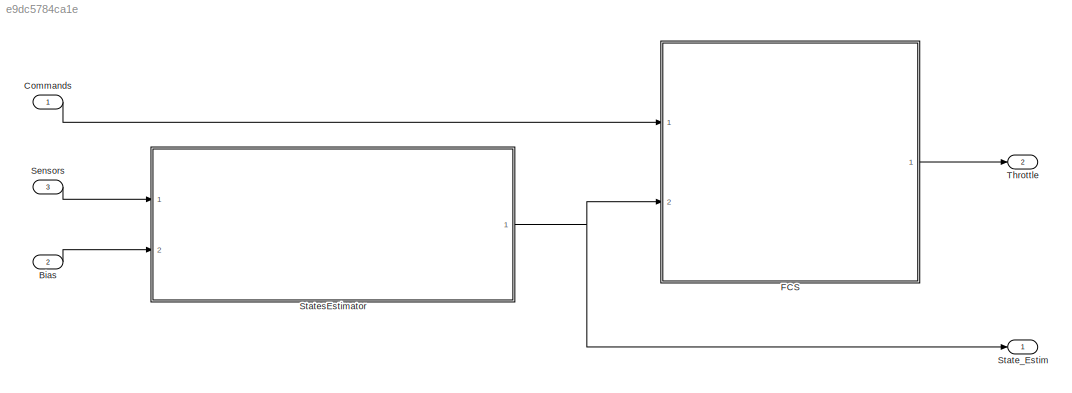
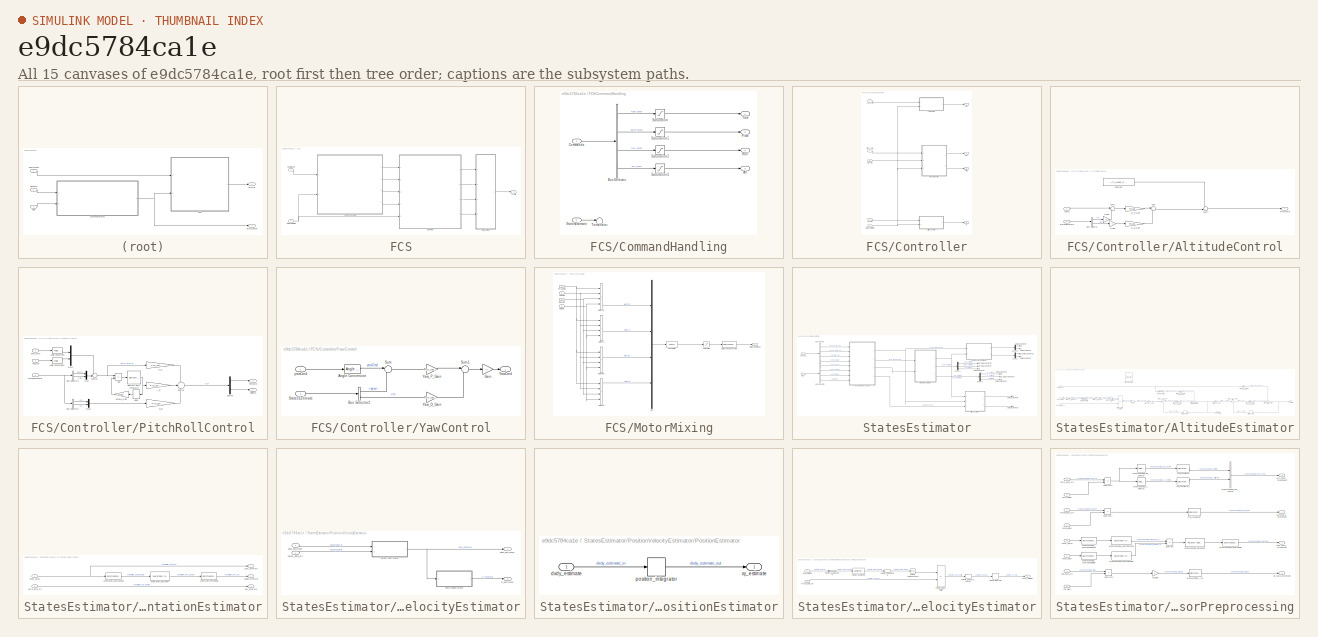
[diagram: thumbnail index - all 15 canvases of the model, root first then tree order]
MODEL slx_e9dc5784ca1e
KIND model
CONFIG AbsTol = auto
CONFIG EnableMultiTasking = off
CONFIG FixedStep = auto
CONFIG MaxStep = auto
CONFIG MinStep = auto
CONFIG RelTol = 1e-3
CONFIG SampleTimeConstraint = Unconstrained
CONFIG SolverName = FixedStepAuto
CONFIG StartTime = 0.0
CONFIG StopTime = 10.0
WORKSPACE source: mxarray member
WORKSPACE Alt_Hover_Const: Simulink.Parameter (value not decoded)
WORKSPACE PID_alt_D: Simulink.Parameter (value not decoded)
WORKSPACE PID_alt_P: Simulink.Parameter (value not decoded)
WORKSPACE PID_pitch_D: Simulink.Parameter (value not decoded)
WORKSPACE PID_pitch_P: Simulink.Parameter (value not decoded)
WORKSPACE PID_pitch_roll_I: Simulink.Parameter (value not decoded)
WORKSPACE PID_roll_D: Simulink.Parameter (value not decoded)
WORKSPACE PID_roll_P: Simulink.Parameter (value not decoded)
WORKSPACE PID_yaw_D: Simulink.Parameter (value not decoded)
WORKSPACE PID_yaw_P: Simulink.Parameter (value not decoded)
BLOCK [Inport] Bias
  OutDataTypeStr = Bus: sensor_bias_t
  Port = 2
BLOCK [Inport] Commands
  OutDataTypeStr = Bus: FCS_command_t
BLOCK [SubSystem] FCS
  Ports = [2, 1]
  RequestExecContextInheritance = off
  TreatAsAtomicUnit = on
BLOCK [SubSystem] FCS/CommandHandling
  Ports = [2, 4]
  RequestExecContextInheritance = off
  TreatAsAtomicUnit = on
BLOCK [Outport] FCS/CommandHandling/Alt
  Port = 4
BLOCK [BusSelector] FCS/CommandHandling/Bus Selector
  OutputSignals = control_input.yaw_cmd,control_input.pitch_cmd,control_input.roll_cmd,control_input.alt_cmd
  Ports = [1, 4]
BLOCK [Inport] FCS/CommandHandling/Commands
BLOCK [Outport] FCS/CommandHandling/Pitch
  Port = 2
BLOCK [Outport] FCS/CommandHandling/Roll
  Port = 3
BLOCK [Saturate] FCS/CommandHandling/Saturation
  LowerLimit = -180
  UpperLimit = 180
BLOCK [Saturate] FCS/CommandHandling/Saturation1
  LowerLimit = -45
  UpperLimit = 45
BLOCK [Saturate] FCS/CommandHandling/Saturation2
  LowerLimit = -45
  UpperLimit = 45
BLOCK [Saturate] FCS/CommandHandling/Saturation3
  LowerLimit = -10
  UpperLimit = 10
BLOCK [Inport] FCS/CommandHandling/StatesEstimate
  OutDataTypeStr = Bus: states_estimate_t
  Port = 2
BLOCK [Terminator] FCS/CommandHandling/Terminator
BLOCK [Outport] FCS/CommandHandling/Yaw
BLOCK [Inport] FCS/Commands
  OutDataTypeStr = Bus: FCS_command_t
BLOCK [SubSystem] FCS/Controller
  Ports = [5, 4]
  RequestExecContextInheritance = off
  TreatAsAtomicUnit = on
BLOCK [Outport] FCS/Controller/Alt
  Port = 4
BLOCK [SubSystem] FCS/Controller/AltitudeControl
  Ports = [2, 1]
  RequestExecContextInheritance = off
  TreatAsAtomicUnit = on
BLOCK [Gain] FCS/Controller/AltitudeControl/Alt_D_Gain
  Gain = PID_alt_D
BLOCK [Gain] FCS/Controller/AltitudeControl/Alt_P_Gain
  Gain = PID_alt_P
BLOCK [BusSelector] FCS/Controller/AltitudeControl/Bus Selector
  OutputSignals = z,dz
  Ports = [1, 2]
BLOCK [Constant] FCS/Controller/AltitudeControl/Constant
  Value = Alt_Hover_Const
BLOCK [Gain] FCS/Controller/AltitudeControl/Gain1
  Gain = -1
BLOCK [Gain] FCS/Controller/AltitudeControl/Gain2
  Gain = -1
BLOCK [Inport] FCS/Controller/AltitudeControl/StatesEstimate
  Port = 2
BLOCK [Sum] FCS/Controller/AltitudeControl/Sum
  Inputs = |+-
  Ports = [2, 1]
BLOCK [Sum] FCS/Controller/AltitudeControl/Sum1
  Inputs = |+-
  Ports = [2, 1]
BLOCK [Sum] FCS/Controller/AltitudeControl/Sum2
  Inputs = ++|
  NameLocation = top
  Ports = [2, 1]
BLOCK [Outport] FCS/Controller/AltitudeControl/ThrustCmd
BLOCK [Inport] FCS/Controller/AltitudeControl/zCmd
BLOCK [Outport] FCS/Controller/Pitch
  Port = 2
BLOCK [SubSystem] FCS/Controller/PitchRollControl
  Ports = [3, 2]
  RequestExecContextInheritance = off
  TreatAsAtomicUnit = on
BLOCK [Sum] FCS/Controller/PitchRollControl/Add
  IconShape = rectangular
  Inputs = +-
  Ports = [2, 1]
BLOCK [Reference] FCS/Controller/PitchRollControl/Angle Conversion  REF=aerolibconvert2/Angle Conversion
  Ports = [1, 1]
  SourceBlock = aerolibconvert2/Angle Conversion
  SourceProductBaseCode = AE
  SourceType = Angle Conversion
BLOCK [Reference] FCS/Controller/PitchRollControl/Angle Conversion1  REF=aerolibconvert2/Angle Conversion
  Ports = [1, 1]
  SourceBlock = aerolibconvert2/Angle Conversion
  SourceProductBaseCode = AE
  SourceType = Angle Conversion
BLOCK [BusSelector] FCS/Controller/PitchRollControl/Bus Selector3
  OutputSignals = pitch,roll
  Ports = [1, 2]
BLOCK [BusSelector] FCS/Controller/PitchRollControl/Bus Selector4
  OutputSignals = q,p
  Ports = [1, 2]
BLOCK [Gain] FCS/Controller/PitchRollControl/D_pr
  Gain = PID_pitch_D
BLOCK [Delay] FCS/Controller/PitchRollControl/Delay
  DelayLength = 1
  InitialCondition = 0
  InputPortMap = u0
  Ports = [1, 1]
BLOCK [Demux] FCS/Controller/PitchRollControl/Demux
  Outputs = 2
  Ports = [1, 2]
BLOCK [DiscreteIntegrator] FCS/Controller/PitchRollControl/Discrete-Time Integrator
  ICPrevOutput = DiscIntNeverNeededParam
  ICPrevScaledInput = DiscIntNeverNeededParam
  InitialConditionSetting = Auto
  LimitOutput = on
  LowerSaturationLimit = -2
  Ports = [1, 1]
  SampleTime = Ts
  UpperSaturationLimit = 2
BLOCK [Gain] FCS/Controller/PitchRollControl/I_pr
  Gain = PID_pitch_roll_I
BLOCK [Mux] FCS/Controller/PitchRollControl/Mux
  DisplayOption = bar
  Inputs = 2
  Ports = [2, 1]
BLOCK [Mux] FCS/Controller/PitchRollControl/Mux1
  DisplayOption = bar
  Inputs = 2
  Ports = [2, 1]
BLOCK [Mux] FCS/Controller/PitchRollControl/Mux2
  DisplayOption = bar
  Inputs = 2
  Ports = [2, 1]
BLOCK [Gain] FCS/Controller/PitchRollControl/P_pr
  Gain = PID_pitch_P
BLOCK [Outport] FCS/Controller/PitchRollControl/PitchCmd
  Port = 2
BLOCK [Outport] FCS/Controller/PitchRollControl/RollCmd
BLOCK [Inport] FCS/Controller/PitchRollControl/StatesEstimate
  Port = 3
BLOCK [Sum] FCS/Controller/PitchRollControl/Sum16
  AccumDataTypeStr = single
  Inputs = ++-
  OutDataTypeStr = single
  Ports = [3, 1]
  SaturateOnIntegerOverflow = on
BLOCK [Sum] FCS/Controller/PitchRollControl/Sum19
  Inputs = +-|
  Ports = [2, 1]
BLOCK [Gain] FCS/Controller/PitchRollControl/antiWU_Gain
  Gain = 0.001
BLOCK [Inport] FCS/Controller/PitchRollControl/pitch_cmd
BLOCK [Inport] FCS/Controller/PitchRollControl/roll_cmd
  Port = 2
BLOCK [Outport] FCS/Controller/Roll
  Port = 3
BLOCK [Inport] FCS/Controller/StatesEstimate
  OutDataTypeStr = Bus: states_estimate_t
  Port = 5
BLOCK [Outport] FCS/Controller/Yaw
BLOCK [SubSystem] FCS/Controller/YawControl
  Ports = [2, 1]
  RequestExecContextInheritance = off
  TreatAsAtomicUnit = on
BLOCK [Reference] FCS/Controller/YawControl/Angle Conversion  REF=aerolibconvert2/Angle Conversion
  Ports = [1, 1]
  SourceBlock = aerolibconvert2/Angle Conversion
  SourceProductBaseCode = AE
  SourceType = Angle Conversion
BLOCK [BusSelector] FCS/Controller/YawControl/Bus Selector1
  OutputSignals = yaw,r
  Ports = [1, 2]
BLOCK [Gain] FCS/Controller/YawControl/Gain
  Gain = -1
BLOCK [Inport] FCS/Controller/YawControl/StatesEstimate
  Port = 2
BLOCK [Sum] FCS/Controller/YawControl/Sum
  Inputs = |+-
  Ports = [2, 1]
BLOCK [Sum] FCS/Controller/YawControl/Sum1
  Inputs = |+-
  Ports = [2, 1]
BLOCK [Outport] FCS/Controller/YawControl/YawCmd
BLOCK [Gain] FCS/Controller/YawControl/Yaw_D_Gain
  Gain = PID_yaw_D
BLOCK [Gain] FCS/Controller/YawControl/Yaw_P_Gain
  Gain = PID_yaw_P
BLOCK [Inport] FCS/Controller/YawControl/yawCmd
BLOCK [Inport] FCS/Controller/alt_cmd
  Port = 4
BLOCK [Inport] FCS/Controller/ptich_cmd
  Port = 2
BLOCK [Inport] FCS/Controller/roll_cmd
  Port = 3
BLOCK [Inport] FCS/Controller/yaw_cmd
BLOCK [SubSystem] FCS/MotorMixing
  Ports = [4, 1]
  RequestExecContextInheritance = off
  TreatAsAtomicUnit = on
BLOCK [DataTypeConversion] FCS/MotorMixing/Data Type Conversion
  OutDataTypeStr = uint16
  RndMeth = Floor
  SaturateOnIntegerOverflow = off
BLOCK [Sum] FCS/MotorMixing/MotorBL
  IconShape = rectangular
  Inputs = ++-+
  Ports = [4, 1]
BLOCK [Sum] FCS/MotorMixing/MotorBR
  IconShape = rectangular
  Inputs = +---
  Ports = [4, 1]
BLOCK [Outport] FCS/MotorMixing/MotorCommand
BLOCK [Sum] FCS/MotorMixing/MotorFL
  IconShape = rectangular
  Inputs = +-++
  Ports = [4, 1]
BLOCK [Sum] FCS/MotorMixing/MotorFR
  IconShape = rectangular
  Inputs = +++-
  Ports = [4, 1]
BLOCK [Mux] FCS/MotorMixing/Mux
  DisplayOption = bar
  Ports = [4, 1]
BLOCK [Inport] FCS/MotorMixing/PitchCmd
  Port = 2
BLOCK [Polyval] FCS/MotorMixing/Polynomial
  Coefs = [86.036 113.82]
BLOCK [Inport] FCS/MotorMixing/RollCmd
  Port = 3
BLOCK [Saturate] FCS/MotorMixing/Saturation
  LowerLimit = Vehicle.Motor.minSignal
  UpperLimit = Vehicle.Motor.maxSignal
BLOCK [Inport] FCS/MotorMixing/ThrustCmd
  Port = 4
BLOCK [Inport] FCS/MotorMixing/YawCmd
BLOCK [Inport] FCS/StatesEstimate
  OutDataTypeStr = Bus: states_estimate_t
  Port = 2
BLOCK [Outport] FCS/Throttle
BLOCK [Inport] Sensors
  OutDataTypeStr = Bus: sensor_data_t
  Port = 3
BLOCK [Outport] State_Estim
  BusOutputAsStruct = on
  OutDataTypeStr = Bus: states_estimate_t
BLOCK [SubSystem] StatesEstimator
  Ports = [2, 1]
  RequestExecContextInheritance = off
  TreatAsAtomicUnit = on
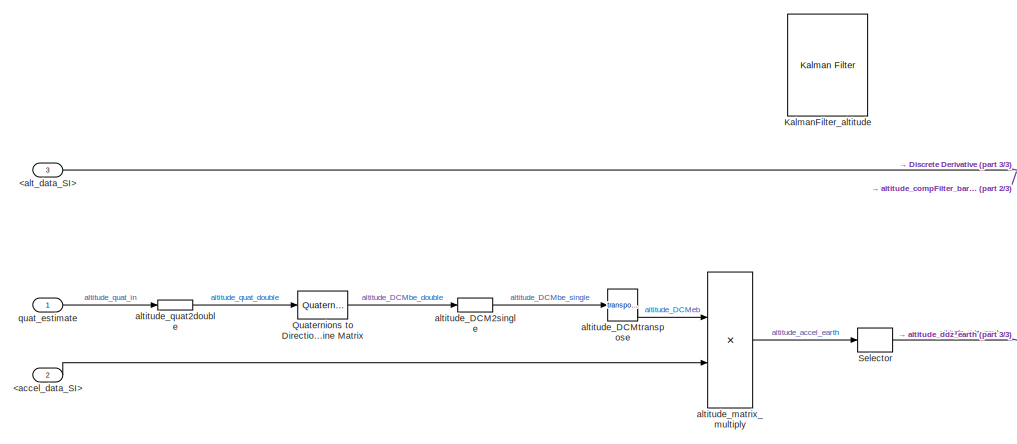
[diagram: StatesEstimator/AltitudeEstimator - part 1/3, left side, full height]
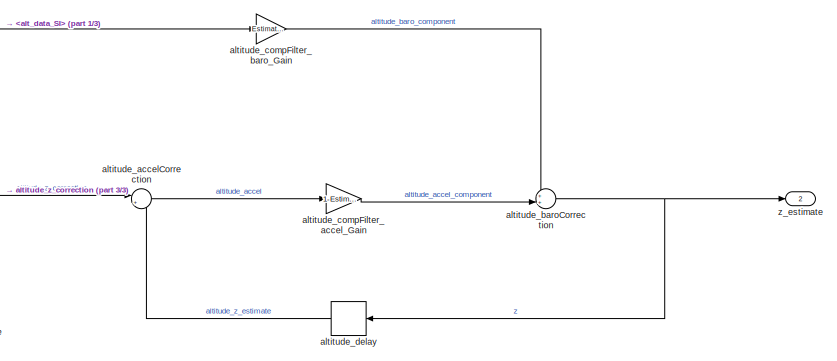
[diagram: StatesEstimator/AltitudeEstimator - part 2/3, middle right region]
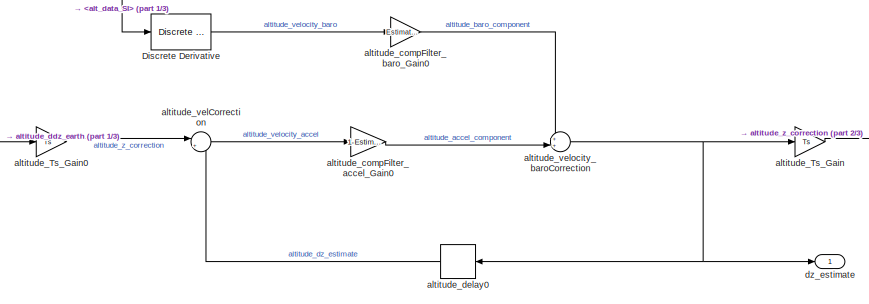
[diagram: StatesEstimator/AltitudeEstimator - part 3/3, bottom center region]
BLOCK [SubSystem] StatesEstimator/AltitudeEstimator
  Ports = [3, 2]
  RequestExecContextInheritance = off
  TreatAsAtomicUnit = on
BLOCK [Inport] StatesEstimator/AltitudeEstimator/<accel_data_SI>
  Port = 2
BLOCK [Inport] StatesEstimator/AltitudeEstimator/<alt_data_SI>
  Port = 3
BLOCK [Reference] StatesEstimator/AltitudeEstimator/Discrete Derivative  REF=simulink/Discrete/Discrete Derivative
  Ports = [1, 1]
  SourceBlock = simulink/Discrete/Discrete Derivative
  SourceProductBaseCode = SL
  SourceType = Discrete Derivative
BLOCK [Reference] StatesEstimator/AltitudeEstimator/KalmanFilter_altitude  REF=ctrlSharedLib/Kalman Filter
  Commented = on
  Ports = [2, 1]
  SourceBlock = ctrlSharedLib/Kalman Filter
  SourceProductBaseCode = CT,ID
  SourceType = ctrlKalmanFilter
BLOCK [Reference] StatesEstimator/AltitudeEstimator/Quaternions to Direction Cosine Matrix  REF=sharedtransform/Quaternions to 
Direction Cosine Matrix
  Ports = [1, 1]
  SourceBlock = sharedtransform/Quaternions to \nDirection Cosine Matrix
  SourceProductBaseCode = AE,PW,MT,UV,VE,VP
  SourceType = Quaternion2DCM
BLOCK [Selector] StatesEstimator/AltitudeEstimator/Selector
  IndexOptions = Index vector (dialog)
  Indices = [3]
  InputPortWidth = 3
  OutputSizes = 1
  Ports = [1, 1]
BLOCK [DataTypeConversion] StatesEstimator/AltitudeEstimator/altitude_DCM2single
  OutDataTypeStr = single
  RndMeth = Floor
  SaturateOnIntegerOverflow = off
BLOCK [Math] StatesEstimator/AltitudeEstimator/altitude_DCMtranspose
  Operator = transpose
  Ports = [1, 1]
BLOCK [Gain] StatesEstimator/AltitudeEstimator/altitude_Ts_Gain
  Gain = Ts
BLOCK [Gain] StatesEstimator/AltitudeEstimator/altitude_Ts_Gain0
  Gain = Ts
BLOCK [Sum] StatesEstimator/AltitudeEstimator/altitude_accelCorrection
  Inputs = |++
  Ports = [2, 1]
BLOCK [Sum] StatesEstimator/AltitudeEstimator/altitude_baroCorrection
  Inputs = ++|
  Ports = [2, 1]
BLOCK [Gain] StatesEstimator/AltitudeEstimator/altitude_compFilter_accel_Gain
  Gain = 1-Estimator.alt.compFilter
BLOCK [Gain] StatesEstimator/AltitudeEstimator/altitude_compFilter_accel_Gain0
  Gain = 1-Estimator.alt.compFilterV
BLOCK [Gain] StatesEstimator/AltitudeEstimator/altitude_compFilter_baro_Gain
  Gain = Estimator.alt.compFilter
BLOCK [Gain] StatesEstimator/AltitudeEstimator/altitude_compFilter_baro_Gain0
  Gain = Estimator.alt.compFilterV
BLOCK [Delay] StatesEstimator/AltitudeEstimator/altitude_delay
  DelayLength = 1
  InitialCondition = 0
  InputPortMap = u0
  Ports = [1, 1]
BLOCK [Delay] StatesEstimator/AltitudeEstimator/altitude_delay0
  DelayLength = 1
  InitialCondition = 0
  InputPortMap = u0
  Ports = [1, 1]
BLOCK [Product] StatesEstimator/AltitudeEstimator/altitude_matrix_multiply
  Multiplication = Matrix(*)
  Ports = [2, 1]
BLOCK [DataTypeConversion] StatesEstimator/AltitudeEstimator/altitude_quat2double
  OutDataTypeStr = double
  RndMeth = Floor
  SaturateOnIntegerOverflow = off
BLOCK [Sum] StatesEstimator/AltitudeEstimator/altitude_velCorrection
  Inputs = |++
  Ports = [2, 1]
BLOCK [Sum] StatesEstimator/AltitudeEstimator/altitude_velocity_baroCorrection
  Inputs = ++|
  Ports = [2, 1]
BLOCK [Outport] StatesEstimator/AltitudeEstimator/dz_estimate
BLOCK [Inport] StatesEstimator/AltitudeEstimator/quat_estimate
BLOCK [Outport] StatesEstimator/AltitudeEstimator/z_estimate
  Port = 2
BLOCK [Inport] StatesEstimator/Bias
  OutDataTypeStr = Bus: sensor_bias_t
  Port = 2
BLOCK [BusSelector] StatesEstimator/Bus Selector
  OutputSignals = gyro_data_SI,accel_data_SI,alt_data_SI,quat_data
  Ports = [1, 4]
BLOCK [BusSelector] StatesEstimator/Bus Selector1
  OutputSignals = gyro_bias,accel_bias,quat_bias,alt_bias
  Ports = [1, 4]
BLOCK [Demux] StatesEstimator/Demux
  Outputs = 2
  Ports = [1, 2]
BLOCK [Demux] StatesEstimator/Demux1
  Outputs = 3
  Ports = [1, 3]
BLOCK [Demux] StatesEstimator/Demux2
  Outputs = 2
  Ports = [1, 2]
BLOCK [Demux] StatesEstimator/Demux4
  Outputs = 3
  Ports = [1, 3]
BLOCK [SubSystem] StatesEstimator/OrientationEstimator
  Ports = [2, 3]
  RequestExecContextInheritance = off
  TreatAsAtomicUnit = on
BLOCK [Inport] StatesEstimator/OrientationEstimator/<gyro_data_SI>
BLOCK [Inport] StatesEstimator/OrientationEstimator/<quat_data>
  Port = 2
BLOCK [Outport] StatesEstimator/OrientationEstimator/angles_estimate
  Port = 2
BLOCK [DataTypeConversion] StatesEstimator/OrientationEstimator/orientation_RPY2single
  OutDataTypeStr = single
  RndMeth = Floor
  SaturateOnIntegerOverflow = off
BLOCK [Reference] StatesEstimator/OrientationEstimator/orientation_quat2RPY  REF=sharedtransform/Quaternions to Rotation Angles
  AttributesFormatString = Rotation Order: %<rotationOrder>
  Ports = [1, 1]
  SourceBlock = sharedtransform/Quaternions to Rotation Angles
  SourceProductBaseCode = AE,PW,MT,UV,VE,VP
  SourceType = Quat2Ang
BLOCK [DataTypeConversion] StatesEstimator/OrientationEstimator/orientation_quat2double
  OutDataTypeStr = double
  RndMeth = Floor
  SaturateOnIntegerOverflow = off
BLOCK [Outport] StatesEstimator/OrientationEstimator/pqr_estimate
  Port = 3
BLOCK [Outport] StatesEstimator/OrientationEstimator/quat_estimate
BLOCK [Outport] StatesEstimator/Out Bus Element1
BLOCK [Outport] StatesEstimator/Out Bus Element10
BLOCK [Outport] StatesEstimator/Out Bus Element11
BLOCK [Outport] StatesEstimator/Out Bus Element12
BLOCK [Outport] StatesEstimator/Out Bus Element2
BLOCK [Outport] StatesEstimator/Out Bus Element3
BLOCK [Outport] StatesEstimator/Out Bus Element4
BLOCK [Outport] StatesEstimator/Out Bus Element5
BLOCK [Outport] StatesEstimator/Out Bus Element6
BLOCK [Outport] StatesEstimator/Out Bus Element7
BLOCK [Outport] StatesEstimator/Out Bus Element8
BLOCK [Outport] StatesEstimator/Out Bus Element9
BLOCK [SubSystem] StatesEstimator/PositionVelocityEstimator
  Commented = on
  Ports = [2, 2]
  RequestExecContextInheritance = off
  TreatAsAtomicUnit = on
BLOCK [Inport] StatesEstimator/PositionVelocityEstimator/<accel_data_SI>
BLOCK [SubSystem] StatesEstimator/PositionVelocityEstimator/PositionEstimator
  Ports = [1, 1]
  RequestExecContextInheritance = off
  TreatAsAtomicUnit = on
BLOCK [Inport] StatesEstimator/PositionVelocityEstimator/PositionEstimator/dxdy_estimate
BLOCK [DiscreteIntegrator] StatesEstimator/PositionVelocityEstimator/PositionEstimator/position_integrator
  ICPrevOutput = DiscIntNeverNeededParam
  ICPrevScaledInput = DiscIntNeverNeededParam
  InitialConditionSetting = Auto
  Ports = [1, 1]
  SampleTime = Ts
BLOCK [Outport] StatesEstimator/PositionVelocityEstimator/PositionEstimator/xy_estimate
BLOCK [SubSystem] StatesEstimator/PositionVelocityEstimator/VelocityEstimator
  Ports = [2, 1]
  RequestExecContextInheritance = off
  TreatAsAtomicUnit = on
BLOCK [Inport] StatesEstimator/PositionVelocityEstimator/VelocityEstimator/<accel_data_SI>
  Port = 2
BLOCK [Outport] StatesEstimator/PositionVelocityEstimator/VelocityEstimator/dxdy_estimate
BLOCK [Inport] StatesEstimator/PositionVelocityEstimator/VelocityEstimator/quat_estimate
BLOCK [DataTypeConversion] StatesEstimator/PositionVelocityEstimator/VelocityEstimator/velocity_DCM2single
  OutDataTypeStr = single
  RndMeth = Floor
  SaturateOnIntegerOverflow = off
BLOCK [Math] StatesEstimator/PositionVelocityEstimator/VelocityEstimator/velocity_DCMtranspose
  Operator = transpose
  Ports = [1, 1]
BLOCK [Selector] StatesEstimator/PositionVelocityEstimator/VelocityEstimator/velocity_accel_xy_selector
  IndexOptions = Index vector (dialog)
  Indices = [1 2]
  InputPortWidth = 3
  OutputSizes = 1
  Ports = [1, 1]
BLOCK [DiscreteIntegrator] StatesEstimator/PositionVelocityEstimator/VelocityEstimator/velocity_integrator
  ICPrevOutput = DiscIntNeverNeededParam
  ICPrevScaledInput = DiscIntNeverNeededParam
  InitialConditionSetting = Auto
  Ports = [1, 1]
  SampleTime = Ts
BLOCK [Product] StatesEstimator/PositionVelocityEstimator/VelocityEstimator/velocity_matrix_multiply
  Multiplication = Matrix(*)
  Ports = [2, 1]
BLOCK [Reference] StatesEstimator/PositionVelocityEstimator/VelocityEstimator/velocity_quat2DCM  REF=sharedtransform/Quaternions to 
Direction Cosine Matrix
  Ports = [1, 1]
  SourceBlock = sharedtransform/Quaternions to \nDirection Cosine Matrix
  SourceProductBaseCode = AE,PW,MT,UV,VE,VP
  SourceType = Quaternion2DCM
BLOCK [DataTypeConversion] StatesEstimator/PositionVelocityEstimator/VelocityEstimator/velocity_quat2double
  OutDataTypeStr = double
  RndMeth = Floor
  SaturateOnIntegerOverflow = off
BLOCK [Outport] StatesEstimator/PositionVelocityEstimator/dxdy_estimate
BLOCK [Inport] StatesEstimator/PositionVelocityEstimator/quat_estimate
  Port = 2
BLOCK [Outport] StatesEstimator/PositionVelocityEstimator/xy_estimate
  Port = 2
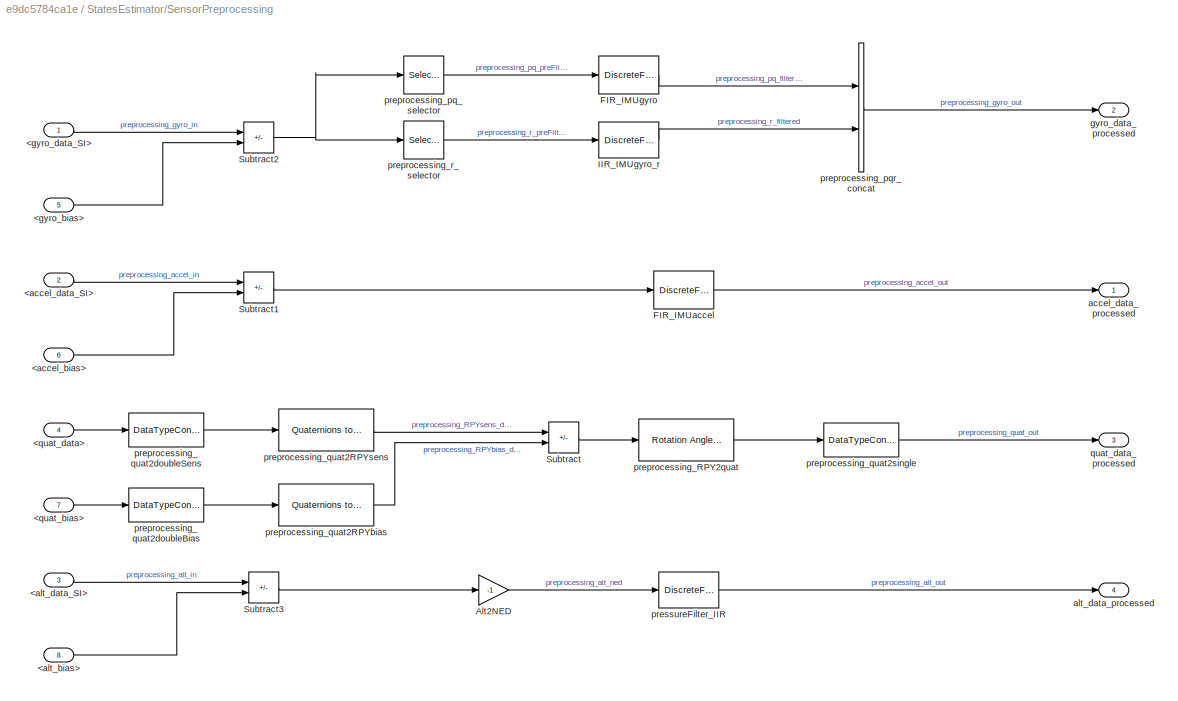
BLOCK [SubSystem] StatesEstimator/SensorPreprocessing
  Ports = [8, 4]
  RequestExecContextInheritance = off
  TreatAsAtomicUnit = on
BLOCK [Inport] StatesEstimator/SensorPreprocessing/<accel_bias>
  Port = 6
BLOCK [Inport] StatesEstimator/SensorPreprocessing/<accel_data_SI>
  Port = 2
BLOCK [Inport] StatesEstimator/SensorPreprocessing/<alt_bias>
  Port = 8
BLOCK [Inport] StatesEstimator/SensorPreprocessing/<alt_data_SI>
  Port = 3
BLOCK [Inport] StatesEstimator/SensorPreprocessing/<gyro_bias>
  Port = 5
BLOCK [Inport] StatesEstimator/SensorPreprocessing/<gyro_data_SI>
BLOCK [Inport] StatesEstimator/SensorPreprocessing/<quat_bias>
  Port = 7
BLOCK [Inport] StatesEstimator/SensorPreprocessing/<quat_data>
  Port = 4
BLOCK [Gain] StatesEstimator/SensorPreprocessing/Alt2NED
  Gain = -1
BLOCK [DiscreteFir] StatesEstimator/SensorPreprocessing/FIR_IMUaccel
  Coefficients = Estimator.IMU.filterAccel.Coefficients
  InputPortMap = u0
  OutputPortMap = o0
  Ports = [1, 1]
BLOCK [DiscreteFir] StatesEstimator/SensorPreprocessing/FIR_IMUgyro
  Coefficients = Estimator.IMU.filterGyro.Coefficients
  InputPortMap = u0
  OutputPortMap = o0
  Ports = [1, 1]
BLOCK [DiscreteFilter] StatesEstimator/SensorPreprocessing/IIR_IMUgyro_r
  Denominator = Estimator.IMU.filterGyroDen
  InputPortMap = u0
  Numerator = Estimator.IMU.filterGyroNum
  Ports = [1, 1]
BLOCK [Sum] StatesEstimator/SensorPreprocessing/Subtract
  IconShape = rectangular
  Inputs = +-
  Ports = [2, 1]
BLOCK [Sum] StatesEstimator/SensorPreprocessing/Subtract1
  IconShape = rectangular
  Inputs = +-
  Ports = [2, 1]
BLOCK [Sum] StatesEstimator/SensorPreprocessing/Subtract2
  IconShape = rectangular
  Inputs = +-
  Ports = [2, 1]
BLOCK [Sum] StatesEstimator/SensorPreprocessing/Subtract3
  IconShape = rectangular
  Inputs = +-
  Ports = [2, 1]
BLOCK [Outport] StatesEstimator/SensorPreprocessing/accel_data_processed
BLOCK [Outport] StatesEstimator/SensorPreprocessing/alt_data_processed
  Port = 4
BLOCK [Outport] StatesEstimator/SensorPreprocessing/gyro_data_processed
  Port = 2
BLOCK [Reference] StatesEstimator/SensorPreprocessing/preprocessing_RPY2quat  REF=sharedtransform/Rotation Angles to Quaternions
  AttributesFormatString = Rotation Order: %<rotationOrder>
  Ports = [1, 1]
  SourceBlock = sharedtransform/Rotation Angles to Quaternions
  SourceProductBaseCode = AE,PW,MT,UV,VE,VP
  SourceType = Ang2Quat
BLOCK [Selector] StatesEstimator/SensorPreprocessing/preprocessing_pq_selector
  IndexOptions = Index vector (dialog)
  Indices = [1 2]
  InputPortWidth = 3
  OutputSizes = 1
  Ports = [1, 1]
BLOCK [Concatenate] StatesEstimator/SensorPreprocessing/preprocessing_pqr_concat
  Ports = [2, 1]
BLOCK [Reference] StatesEstimator/SensorPreprocessing/preprocessing_quat2RPYbias  REF=sharedtransform/Quaternions to Rotation Angles
  AttributesFormatString = Rotation Order: %<rotationOrder>
  Ports = [1, 1]
  SourceBlock = sharedtransform/Quaternions to Rotation Angles
  SourceProductBaseCode = AE,PW,MT,UV,VE,VP
  SourceType = Quat2Ang
BLOCK [Reference] StatesEstimator/SensorPreprocessing/preprocessing_quat2RPYsens  REF=sharedtransform/Quaternions to Rotation Angles
  AttributesFormatString = Rotation Order: %<rotationOrder>
  Ports = [1, 1]
  SourceBlock = sharedtransform/Quaternions to Rotation Angles
  SourceProductBaseCode = AE,PW,MT,UV,VE,VP
  SourceType = Quat2Ang
BLOCK [DataTypeConversion] StatesEstimator/SensorPreprocessing/preprocessing_quat2doubleBias
  OutDataTypeStr = double
  RndMeth = Floor
  SaturateOnIntegerOverflow = off
BLOCK [DataTypeConversion] StatesEstimator/SensorPreprocessing/preprocessing_quat2doubleSens
  OutDataTypeStr = double
  RndMeth = Floor
  SaturateOnIntegerOverflow = off
BLOCK [DataTypeConversion] StatesEstimator/SensorPreprocessing/preprocessing_quat2single
  OutDataTypeStr = single
  RndMeth = Floor
  SaturateOnIntegerOverflow = off
BLOCK [Selector] StatesEstimator/SensorPreprocessing/preprocessing_r_selector
  IndexOptions = Index vector (dialog)
  Indices = [3]
  InputPortWidth = 3
  OutputSizes = 1
  Ports = [1, 1]
BLOCK [DiscreteFilter] StatesEstimator/SensorPreprocessing/pressureFilter_IIR
  Denominator = Estimator.alt.filterPrsDen
  InputPortMap = u0
  Numerator = Estimator.alt.filterPrsNum
  Ports = [1, 1]
BLOCK [Outport] StatesEstimator/SensorPreprocessing/quat_data_processed
  Port = 3
BLOCK [Inport] StatesEstimator/Sensors
  OutDataTypeStr = Bus: sensor_data_t
BLOCK [Outport] Throttle
  OutDataTypeStr = uint16
  Port = 2
LINE Bias:1 -> StatesEstimator:2
LINE Commands:1 -> FCS:1
LINE FCS/CommandHandling/Bus Selector:1 -> FCS/CommandHandling/Saturation:1
LINE FCS/CommandHandling/Bus Selector:2 -> FCS/CommandHandling/Saturation1:1
LINE FCS/CommandHandling/Bus Selector:3 -> FCS/CommandHandling/Saturation2:1
LINE FCS/CommandHandling/Bus Selector:4 -> FCS/CommandHandling/Saturation3:1
LINE FCS/CommandHandling/Commands:1 -> FCS/CommandHandling/Bus Selector:1
LINE FCS/CommandHandling/Saturation1:1 -> FCS/CommandHandling/Pitch:1
LINE FCS/CommandHandling/Saturation2:1 -> FCS/CommandHandling/Roll:1
LINE FCS/CommandHandling/Saturation3:1 -> FCS/CommandHandling/Alt:1
LINE FCS/CommandHandling/Saturation:1 -> FCS/CommandHandling/Yaw:1
LINE FCS/CommandHandling/StatesEstimate:1 -> FCS/CommandHandling/Terminator:1
LINE FCS/CommandHandling:1 -> FCS/Controller:1
LINE FCS/CommandHandling:2 -> FCS/Controller:2
LINE FCS/CommandHandling:3 -> FCS/Controller:3
LINE FCS/CommandHandling:4 -> FCS/Controller:4
LINE FCS/Commands:1 -> FCS/CommandHandling:1
LINE FCS/Controller/AltitudeControl/Alt_D_Gain:1 -> FCS/Controller/AltitudeControl/Sum:2
LINE FCS/Controller/AltitudeControl/Alt_P_Gain:1 -> FCS/Controller/AltitudeControl/Sum:1
LINE FCS/Controller/AltitudeControl/Bus Selector:1 -> FCS/Controller/AltitudeControl/Gain1:1
LINE FCS/Controller/AltitudeControl/Bus Selector:2 -> FCS/Controller/AltitudeControl/Gain2:1
LINE FCS/Controller/AltitudeControl/Constant:1 -> FCS/Controller/AltitudeControl/Sum2:1
LINE FCS/Controller/AltitudeControl/Gain1:1 -> FCS/Controller/AltitudeControl/Sum1:2
LINE FCS/Controller/AltitudeControl/Gain2:1 -> FCS/Controller/AltitudeControl/Alt_D_Gain:1
LINE FCS/Controller/AltitudeControl/StatesEstimate:1 -> FCS/Controller/AltitudeControl/Bus Selector:1
LINE FCS/Controller/AltitudeControl/Sum1:1 -> FCS/Controller/AltitudeControl/Alt_P_Gain:1
LINE FCS/Controller/AltitudeControl/Sum2:1 -> FCS/Controller/AltitudeControl/ThrustCmd:1
LINE FCS/Controller/AltitudeControl/Sum:1 -> FCS/Controller/AltitudeControl/Sum2:2
LINE FCS/Controller/AltitudeControl/zCmd:1 -> FCS/Controller/AltitudeControl/Sum1:1
LINE FCS/Controller/AltitudeControl:1 -> FCS/Controller/Alt:1
LINE FCS/Controller/PitchRollControl/Add:1 -> FCS/Controller/PitchRollControl/Discrete-Time Integrator:1
LINE FCS/Controller/PitchRollControl/Angle Conversion1:1 -> FCS/Controller/PitchRollControl/Mux2:2
LINE FCS/Controller/PitchRollControl/Angle Conversion:1 -> FCS/Controller/PitchRollControl/Mux2:1
LINE FCS/Controller/PitchRollControl/Bus Selector3:1 -> FCS/Controller/PitchRollControl/Mux:1
LINE FCS/Controller/PitchRollControl/Bus Selector3:2 -> FCS/Controller/PitchRollControl/Mux:2
LINE FCS/Controller/PitchRollControl/Bus Selector4:1 -> FCS/Controller/PitchRollControl/Mux1:1
LINE FCS/Controller/PitchRollControl/Bus Selector4:2 -> FCS/Controller/PitchRollControl/Mux1:2
LINE FCS/Controller/PitchRollControl/D_pr:1 -> FCS/Controller/PitchRollControl/Sum16:3
LINE FCS/Controller/PitchRollControl/Delay:1 -> FCS/Controller/PitchRollControl/antiWU_Gain:1
LINE FCS/Controller/PitchRollControl/Demux:1 -> FCS/Controller/PitchRollControl/PitchCmd:1
LINE FCS/Controller/PitchRollControl/Demux:2 -> FCS/Controller/PitchRollControl/RollCmd:1
NET FCS/Controller/PitchRollControl/Discrete-Time Integrator:1 -> FCS/Controller/PitchRollControl/Delay:1, FCS/Controller/PitchRollControl/I_pr:1
LINE FCS/Controller/PitchRollControl/I_pr:1 -> FCS/Controller/PitchRollControl/Sum16:2
LINE FCS/Controller/PitchRollControl/Mux1:1 -> FCS/Controller/PitchRollControl/D_pr:1
LINE FCS/Controller/PitchRollControl/Mux2:1 -> FCS/Controller/PitchRollControl/Sum19:1
LINE FCS/Controller/PitchRollControl/Mux:1 -> FCS/Controller/PitchRollControl/Sum19:2
LINE FCS/Controller/PitchRollControl/P_pr:1 -> FCS/Controller/PitchRollControl/Sum16:1
NET FCS/Controller/PitchRollControl/StatesEstimate:1 -> FCS/Controller/PitchRollControl/Bus Selector3:1, FCS/Controller/PitchRollControl/Bus Selector4:1
LINE FCS/Controller/PitchRollControl/Sum16:1 -> FCS/Controller/PitchRollControl/Demux:1
NET FCS/Controller/PitchRollControl/Sum19:1 -> FCS/Controller/PitchRollControl/Add:1, FCS/Controller/PitchRollControl/P_pr:1
LINE FCS/Controller/PitchRollControl/antiWU_Gain:1 -> FCS/Controller/PitchRollControl/Add:2
LINE FCS/Controller/PitchRollControl/pitch_cmd:1 -> FCS/Controller/PitchRollControl/Angle Conversion:1
LINE FCS/Controller/PitchRollControl/roll_cmd:1 -> FCS/Controller/PitchRollControl/Angle Conversion1:1
LINE FCS/Controller/PitchRollControl:1 -> FCS/Controller/Roll:1
LINE FCS/Controller/PitchRollControl:2 -> FCS/Controller/Pitch:1
NET FCS/Controller/StatesEstimate:1 -> FCS/Controller/AltitudeControl:2, FCS/Controller/PitchRollControl:3, FCS/Controller/YawControl:2
LINE FCS/Controller/YawControl/Angle Conversion:1 -> FCS/Controller/YawControl/Sum:1
LINE FCS/Controller/YawControl/Bus Selector1:1 -> FCS/Controller/YawControl/Sum:2
LINE FCS/Controller/YawControl/Bus Selector1:2 -> FCS/Controller/YawControl/Yaw_D_Gain:1
LINE FCS/Controller/YawControl/Gain:1 -> FCS/Controller/YawControl/YawCmd:1
LINE FCS/Controller/YawControl/StatesEstimate:1 -> FCS/Controller/YawControl/Bus Selector1:1
LINE FCS/Controller/YawControl/Sum1:1 -> FCS/Controller/YawControl/Gain:1
LINE FCS/Controller/YawControl/Sum:1 -> FCS/Controller/YawControl/Yaw_P_Gain:1
LINE FCS/Controller/YawControl/Yaw_D_Gain:1 -> FCS/Controller/YawControl/Sum1:2
LINE FCS/Controller/YawControl/Yaw_P_Gain:1 -> FCS/Controller/YawControl/Sum1:1
LINE FCS/Controller/YawControl/yawCmd:1 -> FCS/Controller/YawControl/Angle Conversion:1
LINE FCS/Controller/YawControl:1 -> FCS/Controller/Yaw:1
LINE FCS/Controller/alt_cmd:1 -> FCS/Controller/AltitudeControl:1
LINE FCS/Controller/ptich_cmd:1 -> FCS/Controller/PitchRollControl:1
LINE FCS/Controller/roll_cmd:1 -> FCS/Controller/PitchRollControl:2
LINE FCS/Controller/yaw_cmd:1 -> FCS/Controller/YawControl:1
LINE FCS/Controller:1 -> FCS/MotorMixing:1
LINE FCS/Controller:2 -> FCS/MotorMixing:2
LINE FCS/Controller:3 -> FCS/MotorMixing:3
LINE FCS/Controller:4 -> FCS/MotorMixing:4
LINE FCS/MotorMixing/Data Type Conversion:1 -> FCS/MotorMixing/MotorCommand:1
LINE FCS/MotorMixing/MotorBL:1 -> FCS/MotorMixing/Mux:4
LINE FCS/MotorMixing/MotorBR:1 -> FCS/MotorMixing/Mux:3
LINE FCS/MotorMixing/MotorFL:1 -> FCS/MotorMixing/Mux:2
LINE FCS/MotorMixing/MotorFR:1 -> FCS/MotorMixing/Mux:1
LINE FCS/MotorMixing/Mux:1 -> FCS/MotorMixing/Polynomial:1
NET FCS/MotorMixing/PitchCmd:1 -> FCS/MotorMixing/MotorBL:3, FCS/MotorMixing/MotorBR:3, FCS/MotorMixing/MotorFL:3, FCS/MotorMixing/MotorFR:3
LINE FCS/MotorMixing/Polynomial:1 -> FCS/MotorMixing/Saturation:1
NET FCS/MotorMixing/RollCmd:1 -> FCS/MotorMixing/MotorBL:4, FCS/MotorMixing/MotorBR:4, FCS/MotorMixing/MotorFL:4, FCS/MotorMixing/MotorFR:4
LINE FCS/MotorMixing/Saturation:1 -> FCS/MotorMixing/Data Type Conversion:1
NET FCS/MotorMixing/ThrustCmd:1 -> FCS/MotorMixing/MotorBL:1, FCS/MotorMixing/MotorBR:1, FCS/MotorMixing/MotorFL:1, FCS/MotorMixing/MotorFR:1
NET FCS/MotorMixing/YawCmd:1 -> FCS/MotorMixing/MotorBL:2, FCS/MotorMixing/MotorBR:2, FCS/MotorMixing/MotorFL:2, FCS/MotorMixing/MotorFR:2
LINE FCS/MotorMixing:1 -> FCS/Throttle:1
NET FCS/StatesEstimate:1 -> FCS/CommandHandling:2, FCS/Controller:5
LINE FCS:1 -> Throttle:1
LINE Sensors:1 -> StatesEstimator:1
LINE StatesEstimator/AltitudeEstimator/<accel_data_SI>:1 -> StatesEstimator/AltitudeEstimator/altitude_matrix_multiply:2
NET StatesEstimator/AltitudeEstimator/<alt_data_SI>:1 -> StatesEstimator/AltitudeEstimator/Discrete Derivative:1, StatesEstimator/AltitudeEstimator/altitude_compFilter_baro_Gain:1
LINE StatesEstimator/AltitudeEstimator/Discrete Derivative:1 -> StatesEstimator/AltitudeEstimator/altitude_compFilter_baro_Gain0:1
LINE StatesEstimator/AltitudeEstimator/Quaternions to Direction Cosine Matrix:1 -> StatesEstimator/AltitudeEstimator/altitude_DCM2single:1
LINE StatesEstimator/AltitudeEstimator/Selector:1 -> StatesEstimator/AltitudeEstimator/altitude_Ts_Gain0:1
LINE StatesEstimator/AltitudeEstimator/altitude_DCM2single:1 -> StatesEstimator/AltitudeEstimator/altitude_DCMtranspose:1
LINE StatesEstimator/AltitudeEstimator/altitude_DCMtranspose:1 -> StatesEstimator/AltitudeEstimator/altitude_matrix_multiply:1
LINE StatesEstimator/AltitudeEstimator/altitude_Ts_Gain0:1 -> StatesEstimator/AltitudeEstimator/altitude_velCorrection:1
LINE StatesEstimator/AltitudeEstimator/altitude_Ts_Gain:1 -> StatesEstimator/AltitudeEstimator/altitude_accelCorrection:1
LINE StatesEstimator/AltitudeEstimator/altitude_accelCorrection:1 -> StatesEstimator/AltitudeEstimator/altitude_compFilter_accel_Gain:1
NET StatesEstimator/AltitudeEstimator/altitude_baroCorrection:1 -> StatesEstimator/AltitudeEstimator/altitude_delay:1, StatesEstimator/AltitudeEstimator/z_estimate:1
LINE StatesEstimator/AltitudeEstimator/altitude_compFilter_accel_Gain0:1 -> StatesEstimator/AltitudeEstimator/altitude_velocity_baroCorrection:2
LINE StatesEstimator/AltitudeEstimator/altitude_compFilter_accel_Gain:1 -> StatesEstimator/AltitudeEstimator/altitude_baroCorrection:2
LINE StatesEstimator/AltitudeEstimator/altitude_compFilter_baro_Gain0:1 -> StatesEstimator/AltitudeEstimator/altitude_velocity_baroCorrection:1
LINE StatesEstimator/AltitudeEstimator/altitude_compFilter_baro_Gain:1 -> StatesEstimator/AltitudeEstimator/altitude_baroCorrection:1
LINE StatesEstimator/AltitudeEstimator/altitude_delay0:1 -> StatesEstimator/AltitudeEstimator/altitude_velCorrection:2
LINE StatesEstimator/AltitudeEstimator/altitude_delay:1 -> StatesEstimator/AltitudeEstimator/altitude_accelCorrection:2
LINE StatesEstimator/AltitudeEstimator/altitude_matrix_multiply:1 -> StatesEstimator/AltitudeEstimator/Selector:1
LINE StatesEstimator/AltitudeEstimator/altitude_quat2double:1 -> StatesEstimator/AltitudeEstimator/Quaternions to Direction Cosine Matrix:1
LINE StatesEstimator/AltitudeEstimator/altitude_velCorrection:1 -> StatesEstimator/AltitudeEstimator/altitude_compFilter_accel_Gain0:1
NET StatesEstimator/AltitudeEstimator/altitude_velocity_baroCorrection:1 -> StatesEstimator/AltitudeEstimator/altitude_Ts_Gain:1, StatesEstimator/AltitudeEstimator/altitude_delay0:1, StatesEstimator/AltitudeEstimator/dz_estimate:1
LINE StatesEstimator/AltitudeEstimator/quat_estimate:1 -> StatesEstimator/AltitudeEstimator/altitude_quat2double:1
LINE StatesEstimator/AltitudeEstimator:1 -> StatesEstimator/Out Bus Element5:1
LINE StatesEstimator/AltitudeEstimator:2 -> StatesEstimator/Out Bus Element2:1
LINE StatesEstimator/Bias:1 -> StatesEstimator/Bus Selector1:1
LINE StatesEstimator/Bus Selector1:1 -> StatesEstimator/SensorPreprocessing:5
LINE StatesEstimator/Bus Selector1:2 -> StatesEstimator/SensorPreprocessing:6
LINE StatesEstimator/Bus Selector1:3 -> StatesEstimator/SensorPreprocessing:7
LINE StatesEstimator/Bus Selector1:4 -> StatesEstimator/SensorPreprocessing:8
LINE StatesEstimator/Bus Selector:1 -> StatesEstimator/SensorPreprocessing:1
LINE StatesEstimator/Bus Selector:2 -> StatesEstimator/SensorPreprocessing:2
LINE StatesEstimator/Bus Selector:3 -> StatesEstimator/SensorPreprocessing:3
LINE StatesEstimator/Bus Selector:4 -> StatesEstimator/SensorPreprocessing:4
LINE StatesEstimator/Demux1:1 -> StatesEstimator/Out Bus Element6:1
LINE StatesEstimator/Demux1:2 -> StatesEstimator/Out Bus Element7:1
LINE StatesEstimator/Demux1:3 -> StatesEstimator/Out Bus Element8:1
LINE StatesEstimator/Demux2:1 -> StatesEstimator/Out Bus Element3:1
LINE StatesEstimator/Demux2:2 -> StatesEstimator/Out Bus Element4:1
LINE StatesEstimator/Demux4:1 -> StatesEstimator/Out Bus Element9:1
LINE StatesEstimator/Demux4:2 -> StatesEstimator/Out Bus Element10:1
LINE StatesEstimator/Demux4:3 -> StatesEstimator/Out Bus Element11:1
LINE StatesEstimator/Demux:1 -> StatesEstimator/Out Bus Element12:1
LINE StatesEstimator/Demux:2 -> StatesEstimator/Out Bus Element1:1
LINE StatesEstimator/OrientationEstimator/<gyro_data_SI>:1 -> StatesEstimator/OrientationEstimator/pqr_estimate:1
NET StatesEstimator/OrientationEstimator/<quat_data>:1 -> StatesEstimator/OrientationEstimator/orientation_quat2double:1, StatesEstimator/OrientationEstimator/quat_estimate:1
LINE StatesEstimator/OrientationEstimator/orientation_RPY2single:1 -> StatesEstimator/OrientationEstimator/angles_estimate:1
LINE StatesEstimator/OrientationEstimator/orientation_quat2RPY:1 -> StatesEstimator/OrientationEstimator/orientation_RPY2single:1
LINE StatesEstimator/OrientationEstimator/orientation_quat2double:1 -> StatesEstimator/OrientationEstimator/orientation_quat2RPY:1
NET StatesEstimator/OrientationEstimator:1 -> StatesEstimator/AltitudeEstimator:1, StatesEstimator/PositionVelocityEstimator:2
LINE StatesEstimator/OrientationEstimator:2 -> StatesEstimator/Demux1:1
LINE StatesEstimator/OrientationEstimator:3 -> StatesEstimator/Demux4:1
LINE StatesEstimator/PositionVelocityEstimator/<accel_data_SI>:1 -> StatesEstimator/PositionVelocityEstimator/VelocityEstimator:2
LINE StatesEstimator/PositionVelocityEstimator/PositionEstimator/dxdy_estimate:1 -> StatesEstimator/PositionVelocityEstimator/PositionEstimator/position_integrator:1
LINE StatesEstimator/PositionVelocityEstimator/PositionEstimator/position_integrator:1 -> StatesEstimator/PositionVelocityEstimator/PositionEstimator/xy_estimate:1
LINE StatesEstimator/PositionVelocityEstimator/PositionEstimator:1 -> StatesEstimator/PositionVelocityEstimator/xy_estimate:1
LINE StatesEstimator/PositionVelocityEstimator/VelocityEstimator/<accel_data_SI>:1 -> StatesEstimator/PositionVelocityEstimator/VelocityEstimator/velocity_matrix_multiply:2
LINE StatesEstimator/PositionVelocityEstimator/VelocityEstimator/quat_estimate:1 -> StatesEstimator/PositionVelocityEstimator/VelocityEstimator/velocity_quat2double:1
LINE StatesEstimator/PositionVelocityEstimator/VelocityEstimator/velocity_DCM2single:1 -> StatesEstimator/PositionVelocityEstimator/VelocityEstimator/velocity_DCMtranspose:1
LINE StatesEstimator/PositionVelocityEstimator/VelocityEstimator/velocity_DCMtranspose:1 -> StatesEstimator/PositionVelocityEstimator/VelocityEstimator/velocity_matrix_multiply:1
LINE StatesEstimator/PositionVelocityEstimator/VelocityEstimator/velocity_accel_xy_selector:1 -> StatesEstimator/PositionVelocityEstimator/VelocityEstimator/velocity_integrator:1
LINE StatesEstimator/PositionVelocityEstimator/VelocityEstimator/velocity_integrator:1 -> StatesEstimator/PositionVelocityEstimator/VelocityEstimator/dxdy_estimate:1
LINE StatesEstimator/PositionVelocityEstimator/VelocityEstimator/velocity_matrix_multiply:1 -> StatesEstimator/PositionVelocityEstimator/VelocityEstimator/velocity_accel_xy_selector:1
LINE StatesEstimator/PositionVelocityEstimator/VelocityEstimator/velocity_quat2DCM:1 -> StatesEstimator/PositionVelocityEstimator/VelocityEstimator/velocity_DCM2single:1
LINE StatesEstimator/PositionVelocityEstimator/VelocityEstimator/velocity_quat2double:1 -> StatesEstimator/PositionVelocityEstimator/VelocityEstimator/velocity_quat2DCM:1
NET StatesEstimator/PositionVelocityEstimator/VelocityEstimator:1 -> StatesEstimator/PositionVelocityEstimator/PositionEstimator:1, StatesEstimator/PositionVelocityEstimator/dxdy_estimate:1
LINE StatesEstimator/PositionVelocityEstimator/quat_estimate:1 -> StatesEstimator/PositionVelocityEstimator/VelocityEstimator:1
LINE StatesEstimator/PositionVelocityEstimator:1 -> StatesEstimator/Demux2:1
LINE StatesEstimator/PositionVelocityEstimator:2 -> StatesEstimator/Demux:1
LINE StatesEstimator/SensorPreprocessing/<accel_bias>:1 -> StatesEstimator/SensorPreprocessing/Subtract1:2
LINE StatesEstimator/SensorPreprocessing/<accel_data_SI>:1 -> StatesEstimator/SensorPreprocessing/Subtract1:1
LINE StatesEstimator/SensorPreprocessing/<alt_bias>:1 -> StatesEstimator/SensorPreprocessing/Subtract3:2
LINE StatesEstimator/SensorPreprocessing/<alt_data_SI>:1 -> StatesEstimator/SensorPreprocessing/Subtract3:1
LINE StatesEstimator/SensorPreprocessing/<gyro_bias>:1 -> StatesEstimator/SensorPreprocessing/Subtract2:2
LINE StatesEstimator/SensorPreprocessing/<gyro_data_SI>:1 -> StatesEstimator/SensorPreprocessing/Subtract2:1
LINE StatesEstimator/SensorPreprocessing/<quat_bias>:1 -> StatesEstimator/SensorPreprocessing/preprocessing_quat2doubleBias:1
LINE StatesEstimator/SensorPreprocessing/<quat_data>:1 -> StatesEstimator/SensorPreprocessing/preprocessing_quat2doubleSens:1
LINE StatesEstimator/SensorPreprocessing/Alt2NED:1 -> StatesEstimator/SensorPreprocessing/pressureFilter_IIR:1
LINE StatesEstimator/SensorPreprocessing/FIR_IMUaccel:1 -> StatesEstimator/SensorPreprocessing/accel_data_processed:1
LINE StatesEstimator/SensorPreprocessing/FIR_IMUgyro:1 -> StatesEstimator/SensorPreprocessing/preprocessing_pqr_concat:1
LINE StatesEstimator/SensorPreprocessing/IIR_IMUgyro_r:1 -> StatesEstimator/SensorPreprocessing/preprocessing_pqr_concat:2
LINE StatesEstimator/SensorPreprocessing/Subtract1:1 -> StatesEstimator/SensorPreprocessing/FIR_IMUaccel:1
NET StatesEstimator/SensorPreprocessing/Subtract2:1 -> StatesEstimator/SensorPreprocessing/preprocessing_pq_selector:1, StatesEstimator/SensorPreprocessing/preprocessing_r_selector:1
LINE StatesEstimator/SensorPreprocessing/Subtract3:1 -> StatesEstimator/SensorPreprocessing/Alt2NED:1
LINE StatesEstimator/SensorPreprocessing/Subtract:1 -> StatesEstimator/SensorPreprocessing/preprocessing_RPY2quat:1
LINE StatesEstimator/SensorPreprocessing/preprocessing_RPY2quat:1 -> StatesEstimator/SensorPreprocessing/preprocessing_quat2single:1
LINE StatesEstimator/SensorPreprocessing/preprocessing_pq_selector:1 -> StatesEstimator/SensorPreprocessing/FIR_IMUgyro:1
LINE StatesEstimator/SensorPreprocessing/preprocessing_pqr_concat:1 -> StatesEstimator/SensorPreprocessing/gyro_data_processed:1
LINE StatesEstimator/SensorPreprocessing/preprocessing_quat2RPYbias:1 -> StatesEstimator/SensorPreprocessing/Subtract:2
LINE StatesEstimator/SensorPreprocessing/preprocessing_quat2RPYsens:1 -> StatesEstimator/SensorPreprocessing/Subtract:1
LINE StatesEstimator/SensorPreprocessing/preprocessing_quat2doubleBias:1 -> StatesEstimator/SensorPreprocessing/preprocessing_quat2RPYbias:1
LINE StatesEstimator/SensorPreprocessing/preprocessing_quat2doubleSens:1 -> StatesEstimator/SensorPreprocessing/preprocessing_quat2RPYsens:1
LINE StatesEstimator/SensorPreprocessing/preprocessing_quat2single:1 -> StatesEstimator/SensorPreprocessing/quat_data_processed:1
LINE StatesEstimator/SensorPreprocessing/preprocessing_r_selector:1 -> StatesEstimator/SensorPreprocessing/IIR_IMUgyro_r:1
LINE StatesEstimator/SensorPreprocessing/pressureFilter_IIR:1 -> StatesEstimator/SensorPreprocessing/alt_data_processed:1
NET StatesEstimator/SensorPreprocessing:1 -> StatesEstimator/AltitudeEstimator:2, StatesEstimator/PositionVelocityEstimator:1
LINE StatesEstimator/SensorPreprocessing:2 -> StatesEstimator/OrientationEstimator:1
LINE StatesEstimator/SensorPreprocessing:3 -> StatesEstimator/OrientationEstimator:2
LINE StatesEstimator/SensorPreprocessing:4 -> StatesEstimator/AltitudeEstimator:3
LINE StatesEstimator/Sensors:1 -> StatesEstimator/Bus Selector:1
NET StatesEstimator:1 -> FCS:2, State_Estim:1
note: NET lines group one-source signal fan-out (src -> all destinations, sorted); 1:1 wires keep LINE
